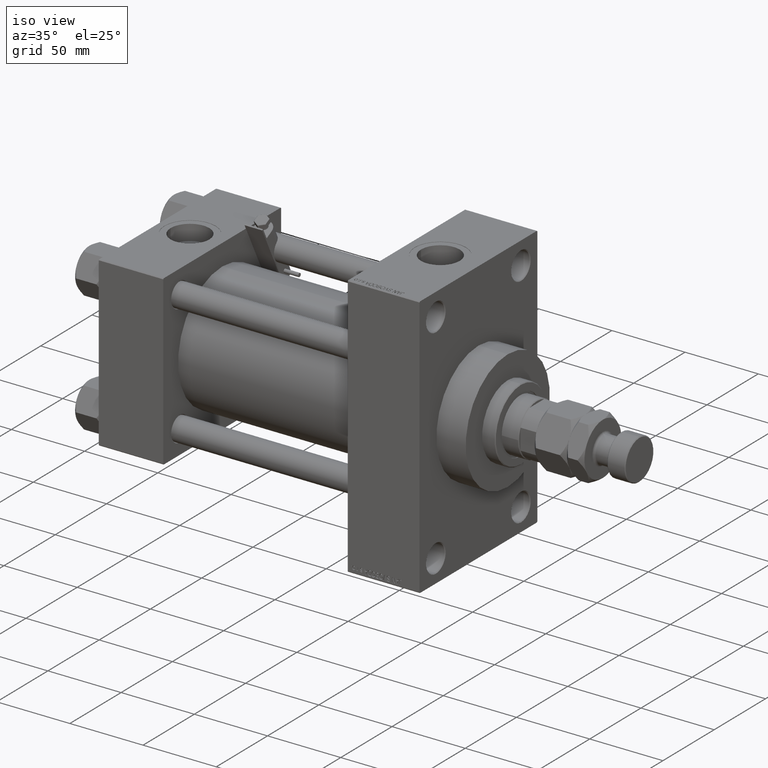
[diagram: clean part render]
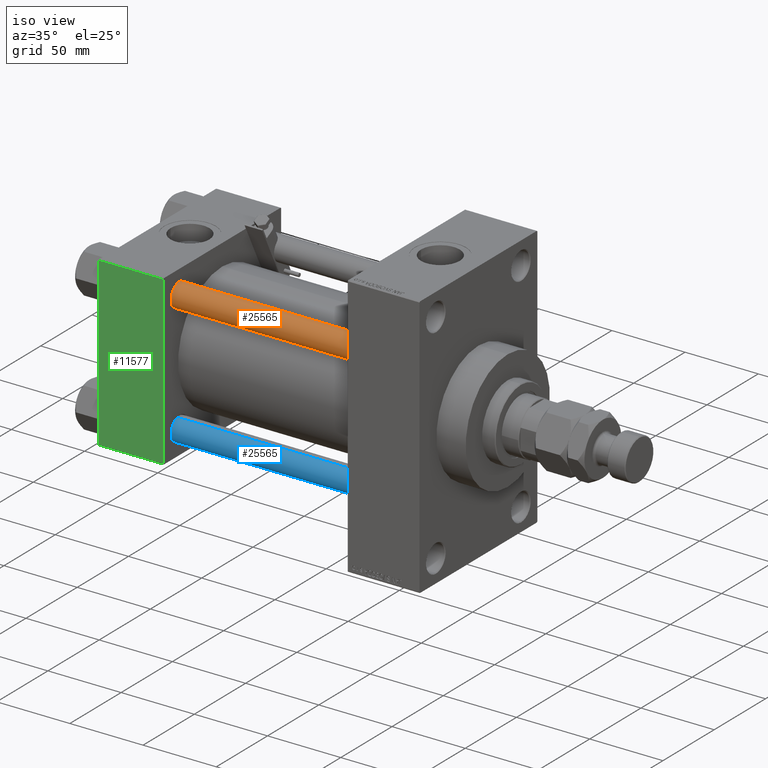
[diagram: same view with three faces highlighted in distinct colors, each labeled with its STEP entity id]
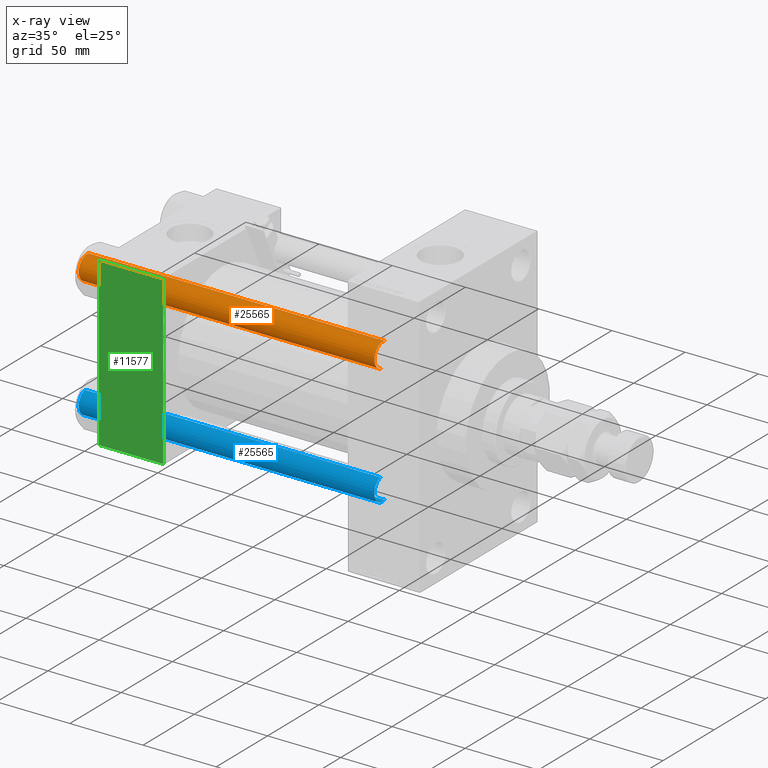
[diagram: x-ray of the same camera — body ghosted, the three highlighted faces saturated]
A machine part, iso view with three faces highlighted in distinct colors.
The next image is the same camera in x-ray (body ghosted, the three faces saturated) — at least one of them is partly hidden behind the body in this view.
Their STEP definitions:

[orange] entity #25565 — the highlighted cylindrical surface (edge-blend (fillet) strip) has radius 8 mm, axis along (1, 0, 0).
#1011 = AXIS2_PLACEMENT_3D ( 'NONE', #30761, #46339, #23604 ) ;
#2162 = DIRECTION ( 'NONE',  ( 1.000000000000000000, 0.000000000000000000, 0.000000000000000000 ) ) ;
#2276 = EDGE_CURVE ( 'NONE', #34402, #42927, #31506, .T. ) ;
#3154 = DIRECTION ( 'NONE',  ( -0.000000000000000000, -0.000000000000000000, -1.000000000000000000 ) ) ;
#3321 = EDGE_CURVE ( 'NONE', #45607, #34402, #21194, .T. ) ;
#6092 = VECTOR ( 'NONE', #3154, 1000.000000000000000 ) ;
#6240 = CARTESIAN_POINT ( 'NONE',  ( -8.000000000000000000, 0.000000000000000000, 203.0000000000000000 ) ) ;
#12082 = ORIENTED_EDGE ( 'NONE', *, *, #26187, .T. ) ;
#13823 = VECTOR ( 'NONE', #17652, 1000.000000000000000 ) ;
#14436 = ORIENTED_EDGE ( 'NONE', *, *, #34552, .F. ) ;
#15199 = CYLINDRICAL_SURFACE ( 'NONE', #1011, 8.000000000000000000 ) ;
#16455 = CARTESIAN_POINT ( 'NONE',  ( -8.000000000000000000, 0.000000000000000000, 0.5000000000001947331 ) ) ;
#17404 = CARTESIAN_POINT ( 'NONE',  ( 8.000000000000000000, 9.797174393178823685E-16, 203.0000000000000000 ) ) ;
#17652 = DIRECTION ( 'NONE',  ( -0.000000000000000000, -0.000000000000000000, -1.000000000000000000 ) ) ;
#18533 = DIRECTION ( 'NONE',  ( -0.000000000000000000, -0.000000000000000000, 1.000000000000000000 ) ) ;
#18917 = CIRCLE ( 'NONE', #20575, 8.000000000000000000 ) ;
#20575 = AXIS2_PLACEMENT_3D ( 'NONE', #21863, #18533, #41508 ) ;
#21194 = CIRCLE ( 'NONE', #30938, 8.000000000000000000 ) ;
#21863 = CARTESIAN_POINT ( 'NONE',  ( 0.000000000000000000, 0.000000000000000000, 0.5000000000001947331 ) ) ;
#23106 = FACE_OUTER_BOUND ( 'NONE', #37854, .T. ) ;
#23188 = ORIENTED_EDGE ( 'NONE', *, *, #3321, .T. ) ;
#23604 = DIRECTION ( 'NONE',  ( -1.000000000000000000, 0.000000000000000000, 0.000000000000000000 ) ) ;
#25565 = ADVANCED_FACE ( 'NONE', ( #23106 ), #15199, .T. ) ;
#26187 = EDGE_CURVE ( 'NONE', #42927, #48534, #18917, .T. ) ;
#27333 = ORIENTED_EDGE ( 'NONE', *, *, #2276, .T. ) ;
#27443 = CARTESIAN_POINT ( 'NONE',  ( 8.000000000000000000, 9.797174393178823685E-16, 202.5000000000000853 ) ) ;
#30345 = CARTESIAN_POINT ( 'NONE',  ( -8.000000000000000000, 0.000000000000000000, 202.5000000000000853 ) ) ;
#30761 = CARTESIAN_POINT ( 'NONE',  ( 0.000000000000000000, 0.000000000000000000, 203.0000000000000000 ) ) ;
#30938 = AXIS2_PLACEMENT_3D ( 'NONE', #40692, #32786, #2162 ) ;
#31506 = LINE ( 'NONE', #17404, #13823 ) ;
#32786 = DIRECTION ( 'NONE',  ( 0.000000000000000000, 0.000000000000000000, -1.000000000000000000 ) ) ;
#34402 = VERTEX_POINT ( 'NONE', #27443 ) ;
#34552 = EDGE_CURVE ( 'NONE', #45607, #48534, #46284, .T. ) ;
#37854 = EDGE_LOOP ( 'NONE', ( #23188, #27333, #12082, #14436 ) ) ;
#40692 = CARTESIAN_POINT ( 'NONE',  ( 0.000000000000000000, 0.000000000000000000, 202.5000000000000853 ) ) ;
#41508 = DIRECTION ( 'NONE',  ( 1.000000000000000000, 0.000000000000000000, 0.000000000000000000 ) ) ;
#42927 = VERTEX_POINT ( 'NONE', #49648 ) ;
#45607 = VERTEX_POINT ( 'NONE', #30345 ) ;
#46284 = LINE ( 'NONE', #6240, #6092 ) ;
#46339 = DIRECTION ( 'NONE',  ( -0.000000000000000000, -0.000000000000000000, -1.000000000000000000 ) ) ;
#48534 = VERTEX_POINT ( 'NONE', #16455 ) ;
#49648 = CARTESIAN_POINT ( 'NONE',  ( 8.000000000000000000, 9.797174393178823685E-16, 0.5000000000001947331 ) ) ;

[blue] entity #25565 — the highlighted cylindrical surface (edge-blend (fillet) strip) has radius 8 mm, axis along (-1, 0, 0).
#1011 = AXIS2_PLACEMENT_3D ( 'NONE', #30761, #46339, #23604 ) ;
#2162 = DIRECTION ( 'NONE',  ( 1.000000000000000000, 0.000000000000000000, 0.000000000000000000 ) ) ;
#2276 = EDGE_CURVE ( 'NONE', #34402, #42927, #31506, .T. ) ;
#3154 = DIRECTION ( 'NONE',  ( -0.000000000000000000, -0.000000000000000000, -1.000000000000000000 ) ) ;
#3321 = EDGE_CURVE ( 'NONE', #45607, #34402, #21194, .T. ) ;
#6092 = VECTOR ( 'NONE', #3154, 1000.000000000000000 ) ;
#6240 = CARTESIAN_POINT ( 'NONE',  ( -8.000000000000000000, 0.000000000000000000, 203.0000000000000000 ) ) ;
#12082 = ORIENTED_EDGE ( 'NONE', *, *, #26187, .T. ) ;
#13823 = VECTOR ( 'NONE', #17652, 1000.000000000000000 ) ;
#14436 = ORIENTED_EDGE ( 'NONE', *, *, #34552, .F. ) ;
#15199 = CYLINDRICAL_SURFACE ( 'NONE', #1011, 8.000000000000000000 ) ;
#16455 = CARTESIAN_POINT ( 'NONE',  ( -8.000000000000000000, 0.000000000000000000, 0.5000000000001947331 ) ) ;
#17404 = CARTESIAN_POINT ( 'NONE',  ( 8.000000000000000000, 9.797174393178823685E-16, 203.0000000000000000 ) ) ;
#17652 = DIRECTION ( 'NONE',  ( -0.000000000000000000, -0.000000000000000000, -1.000000000000000000 ) ) ;
#18533 = DIRECTION ( 'NONE',  ( -0.000000000000000000, -0.000000000000000000, 1.000000000000000000 ) ) ;
#18917 = CIRCLE ( 'NONE', #20575, 8.000000000000000000 ) ;
#20575 = AXIS2_PLACEMENT_3D ( 'NONE', #21863, #18533, #41508 ) ;
#21194 = CIRCLE ( 'NONE', #30938, 8.000000000000000000 ) ;
#21863 = CARTESIAN_POINT ( 'NONE',  ( 0.000000000000000000, 0.000000000000000000, 0.5000000000001947331 ) ) ;
#23106 = FACE_OUTER_BOUND ( 'NONE', #37854, .T. ) ;
#23188 = ORIENTED_EDGE ( 'NONE', *, *, #3321, .T. ) ;
#23604 = DIRECTION ( 'NONE',  ( -1.000000000000000000, 0.000000000000000000, 0.000000000000000000 ) ) ;
#25565 = ADVANCED_FACE ( 'NONE', ( #23106 ), #15199, .T. ) ;
#26187 = EDGE_CURVE ( 'NONE', #42927, #48534, #18917, .T. ) ;
#27333 = ORIENTED_EDGE ( 'NONE', *, *, #2276, .T. ) ;
#27443 = CARTESIAN_POINT ( 'NONE',  ( 8.000000000000000000, 9.797174393178823685E-16, 202.5000000000000853 ) ) ;
#30345 = CARTESIAN_POINT ( 'NONE',  ( -8.000000000000000000, 0.000000000000000000, 202.5000000000000853 ) ) ;
#30761 = CARTESIAN_POINT ( 'NONE',  ( 0.000000000000000000, 0.000000000000000000, 203.0000000000000000 ) ) ;
#30938 = AXIS2_PLACEMENT_3D ( 'NONE', #40692, #32786, #2162 ) ;
#31506 = LINE ( 'NONE', #17404, #13823 ) ;
#32786 = DIRECTION ( 'NONE',  ( 0.000000000000000000, 0.000000000000000000, -1.000000000000000000 ) ) ;
#34402 = VERTEX_POINT ( 'NONE', #27443 ) ;
#34552 = EDGE_CURVE ( 'NONE', #45607, #48534, #46284, .T. ) ;
#37854 = EDGE_LOOP ( 'NONE', ( #23188, #27333, #12082, #14436 ) ) ;
#40692 = CARTESIAN_POINT ( 'NONE',  ( 0.000000000000000000, 0.000000000000000000, 202.5000000000000853 ) ) ;
#41508 = DIRECTION ( 'NONE',  ( 1.000000000000000000, 0.000000000000000000, 0.000000000000000000 ) ) ;
#42927 = VERTEX_POINT ( 'NONE', #49648 ) ;
#45607 = VERTEX_POINT ( 'NONE', #30345 ) ;
#46284 = LINE ( 'NONE', #6240, #6092 ) ;
#46339 = DIRECTION ( 'NONE',  ( -0.000000000000000000, -0.000000000000000000, -1.000000000000000000 ) ) ;
#48534 = VERTEX_POINT ( 'NONE', #16455 ) ;
#49648 = CARTESIAN_POINT ( 'NONE',  ( 8.000000000000000000, 9.797174393178823685E-16, 0.5000000000001947331 ) ) ;

[green] entity #11577 — the highlighted planar face has unit normal (0, 1, 0).
#411 = CARTESIAN_POINT ( 'NONE',  ( 44.00000000000000000, -57.50000000000000711, 57.00000000000000711 ) ) ;
#866 = EDGE_CURVE ( 'NONE', #40486, #34311, #12126, .T. ) ;
#1523 = CARTESIAN_POINT ( 'NONE',  ( 0.000000000000000000, -57.50000000000000711, 57.00000000000000711 ) ) ;
#2218 = EDGE_CURVE ( 'NONE', #12259, #34311, #35330, .T. ) ;
#2834 = ORIENTED_EDGE ( 'NONE', *, *, #866, .T. ) ;
#4488 = CARTESIAN_POINT ( 'NONE',  ( 44.00000000000000000, -57.50000000000000711, 57.00000000000000711 ) ) ;
#5905 = DIRECTION ( 'NONE',  ( 0.000000000000000000, 0.000000000000000000, -1.000000000000000000 ) ) ;
#7518 = EDGE_CURVE ( 'NONE', #21552, #40486, #36872, .T. ) ;
#11577 = ADVANCED_FACE ( 'NONE', ( #37449 ), #29047, .F. ) ;
#11882 = LINE ( 'NONE', #411, #29692 ) ;
#12126 = LINE ( 'NONE', #38675, #30134 ) ;
#12259 = VERTEX_POINT ( 'NONE', #4488 ) ;
#12264 = ORIENTED_EDGE ( 'NONE', *, *, #2218, .F. ) ;
#17069 = CARTESIAN_POINT ( 'NONE',  ( 44.00000000000000000, -57.50000000000000711, 57.49999999999999289 ) ) ;
#17811 = DIRECTION ( 'NONE',  ( -0.000000000000000000, 1.000000000000000000, 0.000000000000000000 ) ) ;
#18226 = CARTESIAN_POINT ( 'NONE',  ( 0.000000000000000000, -57.50000000000000711, 57.49999999999999289 ) ) ;
#18876 = VECTOR ( 'NONE', #25886, 1000.000000000000000 ) ;
#19289 = DIRECTION ( 'NONE',  ( 1.000000000000000000, 0.000000000000000000, 0.000000000000000000 ) ) ;
#20028 = CARTESIAN_POINT ( 'NONE',  ( 44.00000000000000000, -57.50000000000000711, 57.49999999999999289 ) ) ;
#20700 = ORIENTED_EDGE ( 'NONE', *, *, #34348, .T. ) ;
#21552 = VERTEX_POINT ( 'NONE', #1523 ) ;
#25552 = AXIS2_PLACEMENT_3D ( 'NONE', #17069, #17811, #36459 ) ;
#25886 = DIRECTION ( 'NONE',  ( 0.000000000000000000, 0.000000000000000000, -1.000000000000000000 ) ) ;
#27200 = ORIENTED_EDGE ( 'NONE', *, *, #7518, .T. ) ;
#28197 = CARTESIAN_POINT ( 'NONE',  ( 44.00000000000000000, -57.50000000000000711, -57.00000000000000711 ) ) ;
#29047 = PLANE ( 'NONE',  #25552 ) ;
#29692 = VECTOR ( 'NONE', #46849, 1000.000000000000000 ) ;
#30134 = VECTOR ( 'NONE', #19289, 1000.000000000000000 ) ;
#33433 = CARTESIAN_POINT ( 'NONE',  ( 0.000000000000000000, -57.50000000000000711, -57.00000000000000711 ) ) ;
#34311 = VERTEX_POINT ( 'NONE', #28197 ) ;
#34348 = EDGE_CURVE ( 'NONE', #12259, #21552, #11882, .T. ) ;
#35330 = LINE ( 'NONE', #20028, #50473 ) ;
#36459 = DIRECTION ( 'NONE',  ( 0.000000000000000000, -0.000000000000000000, 1.000000000000000000 ) ) ;
#36872 = LINE ( 'NONE', #18226, #18876 ) ;
#37449 = FACE_OUTER_BOUND ( 'NONE', #41073, .T. ) ;
#38675 = CARTESIAN_POINT ( 'NONE',  ( 44.00000000000000000, -57.50000000000000711, -57.00000000000000711 ) ) ;
#40486 = VERTEX_POINT ( 'NONE', #33433 ) ;
#41073 = EDGE_LOOP ( 'NONE', ( #27200, #2834, #12264, #20700 ) ) ;
#46849 = DIRECTION ( 'NONE',  ( -1.000000000000000000, 0.000000000000000000, 0.000000000000000000 ) ) ;
#50473 = VECTOR ( 'NONE', #5905, 1000.000000000000000 ) ;